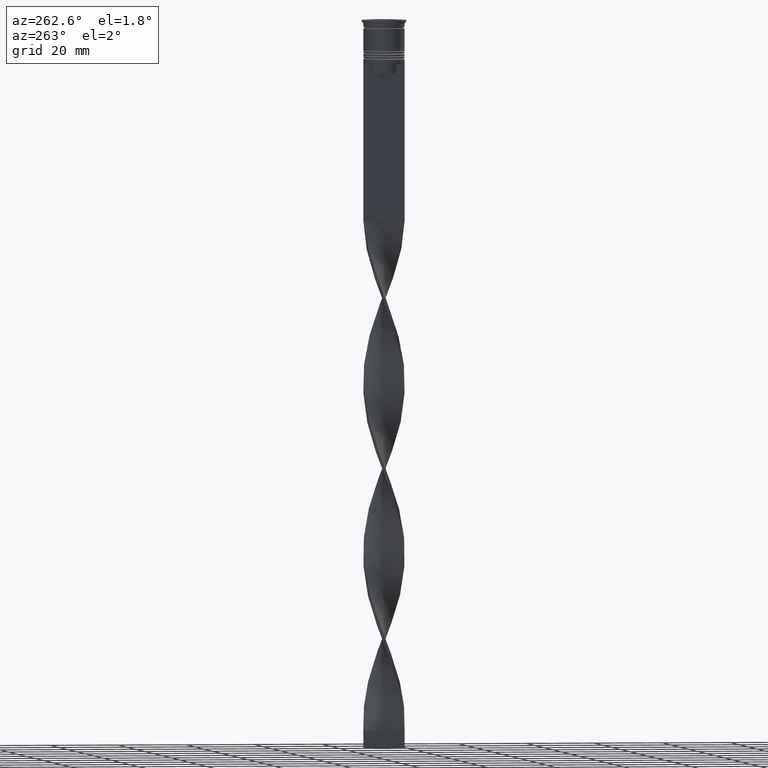
[diagram: clean part render]
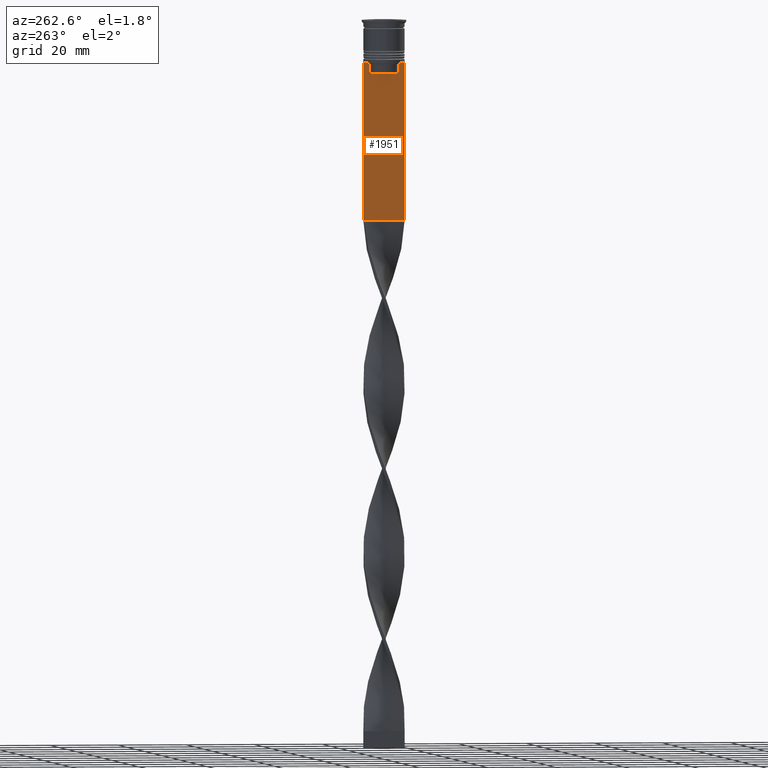
[diagram: same view with one face highlighted and labeled with its STEP entity id]
A machine part, auxiliary view. The second image highlights one B-rep face of the part: STEP entity #1951.
In plain terms, the highlighted planar face has unit normal (-1, 0, 0).
Its self-contained STEP definition (entity closure, byte-faithful):
#65 = B_SPLINE_CURVE_WITH_KNOTS ( 'NONE', 3,
 ( #1053, #1671, #3169, #2241 ),
 .UNSPECIFIED., .F., .F.,
 ( 4, 4 ),
 ( 0.02089901220910806920, 0.02161421017310284978 ),
 .UNSPECIFIED. ) ;
#194 = VERTEX_POINT ( 'NONE', #3032 ) ;
#199 = CARTESIAN_POINT ( 'NONE',  ( -0.4999999999999997780, -6.000000000000000000, -12.50000000000000000 ) ) ;
#244 = VECTOR ( 'NONE', #3879, 1000.000000000000000 ) ;
#302 = ORIENTED_EDGE ( 'NONE', *, *, #1936, .F. ) ;
#321 = CARTESIAN_POINT ( 'NONE',  ( -0.4999999999999997780, 6.000000000000000888, -58.50000000000000000 ) ) ;
#325 = EDGE_CURVE ( 'NONE', #1388, #2442, #519, .T. ) ;
#360 = CARTESIAN_POINT ( 'NONE',  ( -0.4999999999999997780, -6.000000000000000000, -12.50000000000000000 ) ) ;
#370 = ORIENTED_EDGE ( 'NONE', *, *, #3418, .F. ) ;
#392 = CARTESIAN_POINT ( 'NONE',  ( -0.4999999999999997780, 4.874423042781576676, -12.50000000000000000 ) ) ;
#449 = LINE ( 'NONE', #199, #2568 ) ;
#476 = FACE_OUTER_BOUND ( 'NONE', #1763, .T. ) ;
#487 = VECTOR ( 'NONE', #2977, 1000.000000000000000 ) ;
#519 = B_SPLINE_CURVE_WITH_KNOTS ( 'NONE', 3,
 ( #392, #3460, #1908, #1574 ),
 .UNSPECIFIED., .F., .F.,
 ( 4, 4 ),
 ( 0.008336552452178418518, 0.009045730124312837891 ),
 .UNSPECIFIED. ) ;
#560 = DIRECTION ( 'NONE',  ( 0.000000000000000000, 0.000000000000000000, -1.000000000000000000 ) ) ;
#569 = EDGE_CURVE ( 'NONE', #1317, #2036, #449, .T. ) ;
#573 = CARTESIAN_POINT ( 'NONE',  ( -0.4999999999999997780, -6.000000000000000000, -12.50000000000000000 ) ) ;
#592 = CARTESIAN_POINT ( 'NONE',  ( -0.4999999999999997780, -6.000000000000000000, -12.50000000000000000 ) ) ;
#734 = DIRECTION ( 'NONE',  ( -1.000000000000000000, 0.000000000000000000, 0.000000000000000000 ) ) ;
#753 = EDGE_CURVE ( 'NONE', #2442, #2515, #3028, .T. ) ;
#802 = EDGE_CURVE ( 'NONE', #2515, #194, #3297, .T. ) ;
#807 = LINE ( 'NONE', #2353, #487 ) ;
#850 = AXIS2_PLACEMENT_3D ( 'NONE', #1954, #734, #3445 ) ;
#876 = DIRECTION ( 'NONE',  ( 0.000000000000000000, -1.000000000000000000, 0.000000000000000000 ) ) ;
#885 = DIRECTION ( 'NONE',  ( 0.000000000000000000, 0.000000000000000000, -1.000000000000000000 ) ) ;
#924 = VERTEX_POINT ( 'NONE', #983 ) ;
#983 = CARTESIAN_POINT ( 'NONE',  ( -0.4999999999999997780, 6.000000000000001776, -12.50000000000000000 ) ) ;
#1015 = LINE ( 'NONE', #360, #244 ) ;
#1029 = CARTESIAN_POINT ( 'NONE',  ( -0.4999999999999997780, -4.874423042781576676, -12.50000000000000000 ) ) ;
#1030 = EDGE_CURVE ( 'NONE', #924, #2189, #2648, .T. ) ;
#1033 = PLANE ( 'NONE',  #850 ) ;
#1053 = CARTESIAN_POINT ( 'NONE',  ( -0.4999999999999997780, -4.371498598878878816, -13.00000000000000178 ) ) ;
#1148 = ORIENTED_EDGE ( 'NONE', *, *, #753, .F. ) ;
#1190 = DIRECTION ( 'NONE',  ( -0.000000000000000000, -0.000000000000000000, 1.000000000000000000 ) ) ;
#1229 = ORIENTED_EDGE ( 'NONE', *, *, #802, .F. ) ;
#1278 = VERTEX_POINT ( 'NONE', #3641 ) ;
#1317 = VERTEX_POINT ( 'NONE', #3077 ) ;
#1375 = VECTOR ( 'NONE', #2904, 1000.000000000000000 ) ;
#1388 = VERTEX_POINT ( 'NONE', #3758 ) ;
#1515 = VECTOR ( 'NONE', #1190, 1000.000000000000000 ) ;
#1524 = DIRECTION ( 'NONE',  ( 0.000000000000000000, 0.000000000000000000, -1.000000000000000000 ) ) ;
#1574 = CARTESIAN_POINT ( 'NONE',  ( -0.4999999999999997780, 4.371498598878878816, -13.00000000000000178 ) ) ;
#1638 = CARTESIAN_POINT ( 'NONE',  ( -0.4999999999999997780, 5.878775382679627626, -12.50000000000000000 ) ) ;
#1671 = CARTESIAN_POINT ( 'NONE',  ( -0.4999999999999997780, -4.539195586926424220, -12.83338928448044136 ) ) ;
#1692 = CARTESIAN_POINT ( 'NONE',  ( -0.4999999999999997780, -6.000000000000000000, -58.50000000000000000 ) ) ;
#1720 = ORIENTED_EDGE ( 'NONE', *, *, #325, .F. ) ;
#1760 = CARTESIAN_POINT ( 'NONE',  ( -0.4999999999999997780, -6.000000000000000000, -0.4584054212077061097 ) ) ;
#1763 = EDGE_LOOP ( 'NONE', ( #1720, #3228, #2771, #1882, #2013, #3664, #1948, #3359, #302, #370, #1229, #1148 ) ) ;
#1881 = VECTOR ( 'NONE', #885, 1000.000000000000000 ) ;
#1882 = ORIENTED_EDGE ( 'NONE', *, *, #1030, .T. ) ;
#1908 = CARTESIAN_POINT ( 'NONE',  ( -0.4999999999999997780, 4.539195634199897356, -12.83338923751318816 ) ) ;
#1936 = EDGE_CURVE ( 'NONE', #3338, #3022, #65, .T. ) ;
#1948 = ORIENTED_EDGE ( 'NONE', *, *, #569, .F. ) ;
#1951 = ADVANCED_FACE ( 'NONE', ( #476 ), #1033, .T. ) ;
#1954 = CARTESIAN_POINT ( 'NONE',  ( -0.4999999999999997780, -6.000000000000000000, -0.4584054212077061097 ) ) ;
#1975 = EDGE_CURVE ( 'NONE', #2036, #1278, #2905, .T. ) ;
#2013 = ORIENTED_EDGE ( 'NONE', *, *, #2407, .F. ) ;
#2036 = VERTEX_POINT ( 'NONE', #592 ) ;
#2062 = VECTOR ( 'NONE', #1524, 1000.000000000000000 ) ;
#2096 = EDGE_CURVE ( 'NONE', #924, #2530, #2323, .T. ) ;
#2163 = CARTESIAN_POINT ( 'NONE',  ( -0.4999999999999997780, -4.371498598878878816, 0.000000000000000000 ) ) ;
#2189 = VERTEX_POINT ( 'NONE', #321 ) ;
#2193 = CARTESIAN_POINT ( 'NONE',  ( -0.4999999999999997780, -4.371498598878878816, -13.00000000000000178 ) ) ;
#2241 = CARTESIAN_POINT ( 'NONE',  ( -0.4999999999999997780, -4.874423042781576676, -12.50000000000000000 ) ) ;
#2323 = LINE ( 'NONE', #573, #2948 ) ;
#2353 = CARTESIAN_POINT ( 'NONE',  ( -0.4999999999999997780, -6.000000000000000000, -12.50000000000000000 ) ) ;
#2407 = EDGE_CURVE ( 'NONE', #1278, #2189, #2879, .T. ) ;
#2442 = VERTEX_POINT ( 'NONE', #2521 ) ;
#2455 = CARTESIAN_POINT ( 'NONE',  ( -0.4999999999999997780, 4.371498598878878816, 0.000000000000000000 ) ) ;
#2515 = VERTEX_POINT ( 'NONE', #2560 ) ;
#2521 = CARTESIAN_POINT ( 'NONE',  ( -0.4999999999999997780, 4.371498598878878816, -13.00000000000000178 ) ) ;
#2530 = VERTEX_POINT ( 'NONE', #1638 ) ;
#2560 = CARTESIAN_POINT ( 'NONE',  ( -0.4999999999999997780, 4.371498598878878816, -15.50000000000000000 ) ) ;
#2568 = VECTOR ( 'NONE', #2578, 1000.000000000000000 ) ;
#2578 = DIRECTION ( 'NONE',  ( 0.000000000000000000, -1.000000000000000000, 0.000000000000000000 ) ) ;
#2648 = LINE ( 'NONE', #2712, #3630 ) ;
#2692 = DIRECTION ( 'NONE',  ( 0.000000000000000000, -1.000000000000000000, 0.000000000000000000 ) ) ;
#2712 = CARTESIAN_POINT ( 'NONE',  ( -0.4999999999999997780, 6.000000000000000888, -0.4584054212077061097 ) ) ;
#2771 = ORIENTED_EDGE ( 'NONE', *, *, #2096, .F. ) ;
#2879 = LINE ( 'NONE', #1692, #1375 ) ;
#2904 = DIRECTION ( 'NONE',  ( 0.000000000000000000, 1.000000000000000000, 0.000000000000000000 ) ) ;
#2905 = LINE ( 'NONE', #1760, #2062 ) ;
#2948 = VECTOR ( 'NONE', #876, 1000.000000000000000 ) ;
#2977 = DIRECTION ( 'NONE',  ( 0.000000000000000000, -1.000000000000000000, 0.000000000000000000 ) ) ;
#3022 = VERTEX_POINT ( 'NONE', #1029 ) ;
#3028 = LINE ( 'NONE', #2455, #1881 ) ;
#3032 = CARTESIAN_POINT ( 'NONE',  ( -0.4999999999999997780, -4.371498598878878816, -15.50000000000000000 ) ) ;
#3077 = CARTESIAN_POINT ( 'NONE',  ( -0.4999999999999997780, -5.878775382679627626, -12.50000000000000000 ) ) ;
#3114 = LINE ( 'NONE', #2163, #1515 ) ;
#3169 = CARTESIAN_POINT ( 'NONE',  ( -0.4999999999999997780, -4.706831372970964544, -12.66671687695981596 ) ) ;
#3228 = ORIENTED_EDGE ( 'NONE', *, *, #3484, .F. ) ;
#3248 = EDGE_CURVE ( 'NONE', #3022, #1317, #807, .T. ) ;
#3263 = CARTESIAN_POINT ( 'NONE',  ( -0.4999999999999997780, 4.399999999999999467, -15.50000000000000000 ) ) ;
#3297 = LINE ( 'NONE', #3263, #3321 ) ;
#3321 = VECTOR ( 'NONE', #2692, 1000.000000000000000 ) ;
#3338 = VERTEX_POINT ( 'NONE', #2193 ) ;
#3359 = ORIENTED_EDGE ( 'NONE', *, *, #3248, .F. ) ;
#3418 = EDGE_CURVE ( 'NONE', #194, #3338, #3114, .T. ) ;
#3445 = DIRECTION ( 'NONE',  ( 0.000000000000000000, 0.000000000000000000, 1.000000000000000000 ) ) ;
#3460 = CARTESIAN_POINT ( 'NONE',  ( -0.4999999999999997780, 4.706831415367290106, -12.66671683478478982 ) ) ;
#3484 = EDGE_CURVE ( 'NONE', #2530, #1388, #1015, .T. ) ;
#3630 = VECTOR ( 'NONE', #560, 1000.000000000000000 ) ;
#3641 = CARTESIAN_POINT ( 'NONE',  ( -0.4999999999999997780, -6.000000000000000000, -58.50000000000000000 ) ) ;
#3664 = ORIENTED_EDGE ( 'NONE', *, *, #1975, .F. ) ;
#3758 = CARTESIAN_POINT ( 'NONE',  ( -0.4999999999999997780, 4.874423042781576676, -12.50000000000000000 ) ) ;
#3879 = DIRECTION ( 'NONE',  ( 0.000000000000000000, -1.000000000000000000, 0.000000000000000000 ) ) ;